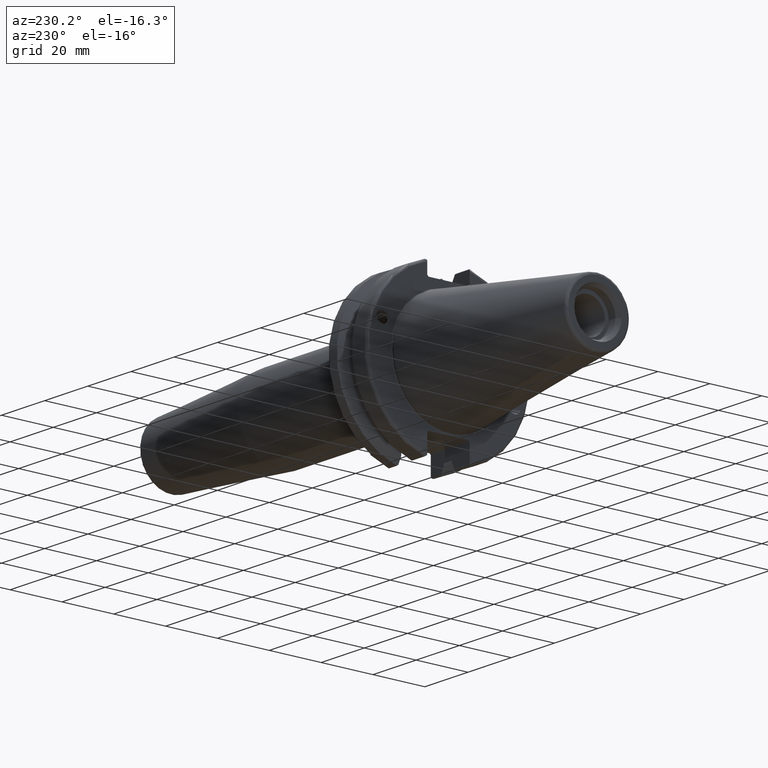
[diagram: clean part render]
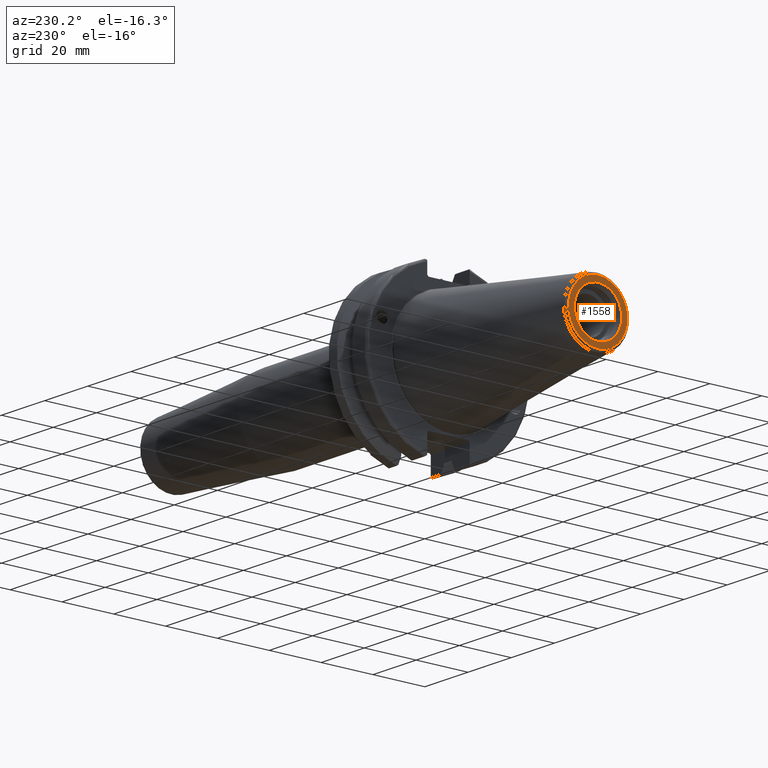
[diagram: same view with one face highlighted and labeled with its STEP entity id]
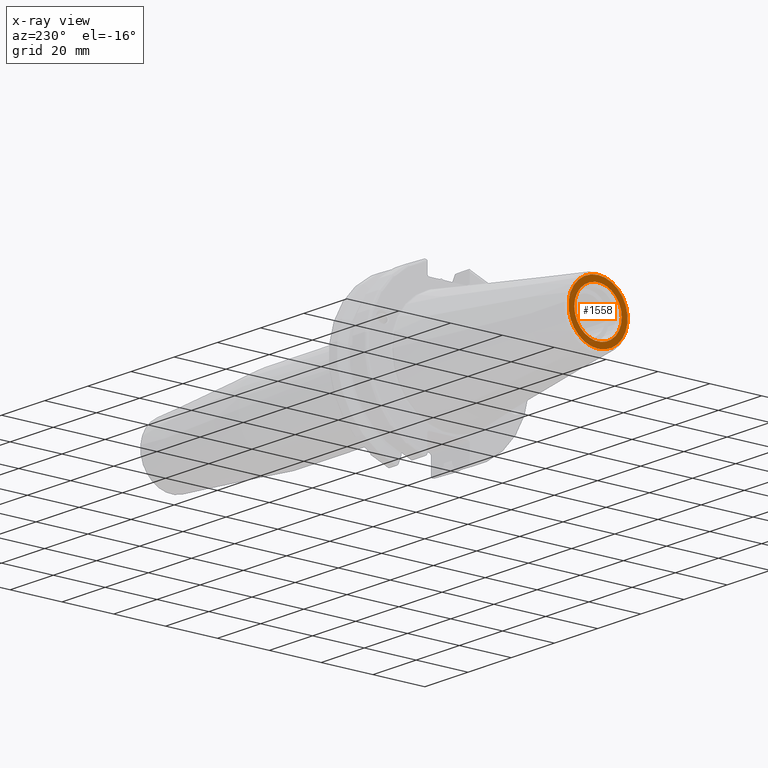
[diagram: x-ray of the same camera — body ghosted, the highlighted face saturated]
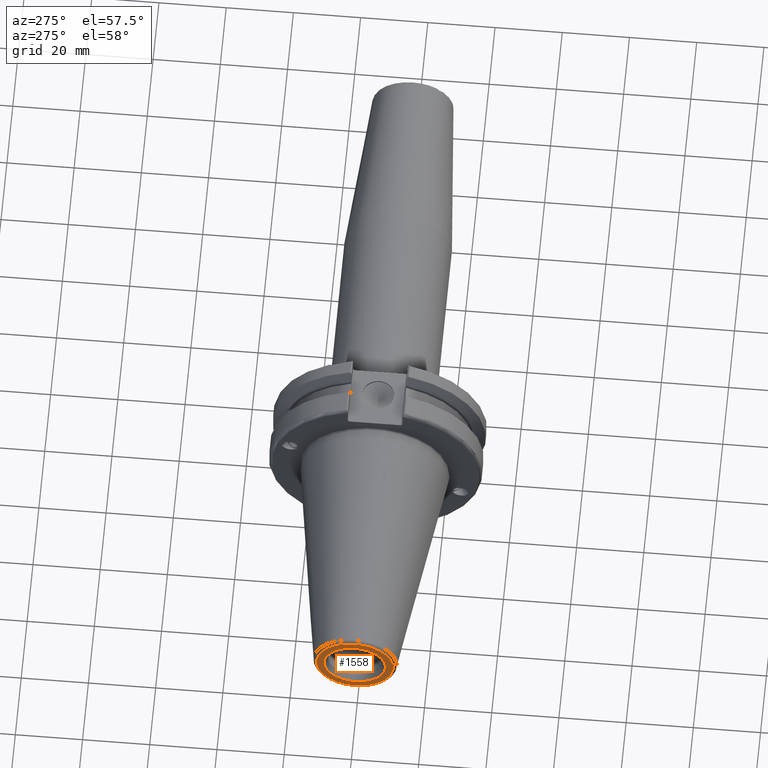
[diagram: same view with one face highlighted and labeled with its STEP entity id]
A machine part, auxiliary view. The second image highlights one B-rep face of the part: STEP entity #1558.
The next image is the same camera in x-ray: the body ghosted, the highlighted face saturated — about 0% of this face is hidden behind the body in this view.
A second angle (auxiliary view) of the same face is appended — the face is thin or edge-on in the first view.
In plain terms, the highlighted planar face has unit normal (-1, 0, 0).
Its self-contained STEP definition (entity closure, byte-faithful):
#78=FACE_BOUND('',#337,.T.);
#101=PLANE('',#1749);
#233=FACE_OUTER_BOUND('',#336,.T.);
#336=EDGE_LOOP('',(#1353));
#337=EDGE_LOOP('',(#1354));
#614=CIRCLE('',#1748,11.4071305970304);
#615=CIRCLE('',#1750,9.15);
#774=VERTEX_POINT('',#2990);
#775=VERTEX_POINT('',#2994);
#985=EDGE_CURVE('',#774,#774,#614,.T.);
#986=EDGE_CURVE('',#775,#775,#615,.T.);
#1353=ORIENTED_EDGE('',*,*,#985,.F.);
#1354=ORIENTED_EDGE('',*,*,#986,.T.);
#1558=ADVANCED_FACE('',(#233,#78),#101,.T.);
#1748=AXIS2_PLACEMENT_3D('',#2992,#2144,#2145);
#1749=AXIS2_PLACEMENT_3D('',#2993,#2146,#2147);
#1750=AXIS2_PLACEMENT_3D('',#2995,#2148,#2149);
#2144=DIRECTION('center_axis',(1.,0.,0.));
#2145=DIRECTION('ref_axis',(0.,-1.,1.83697019872103E-16));
#2146=DIRECTION('center_axis',(-1.,0.,0.));
#2147=DIRECTION('ref_axis',(0.,0.,1.));
#2148=DIRECTION('center_axis',(1.,0.,0.));
#2149=DIRECTION('ref_axis',(0.,0.,-1.));
#2990=CARTESIAN_POINT('',(-68.25,-1.39697059731091E-15,11.4071305970304));
#2992=CARTESIAN_POINT('Origin',(-68.25,0.,0.));
#2993=CARTESIAN_POINT('Origin',(-68.25,12.271875,0.));
#2994=CARTESIAN_POINT('',(-68.25,-9.15,-1.12055182121983E-15));
#2995=CARTESIAN_POINT('Origin',(-68.25,0.,0.));